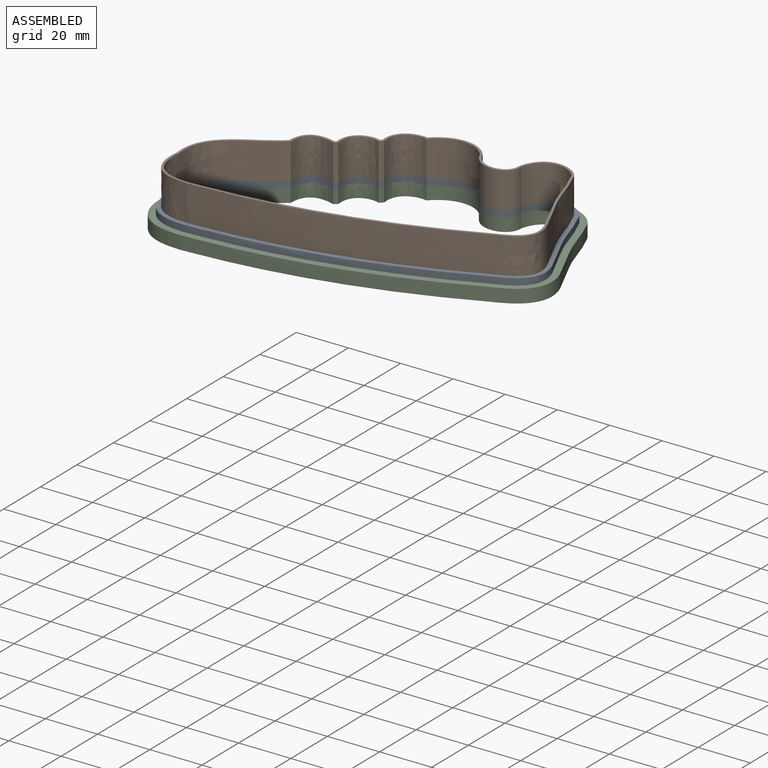
[diagram: assembled view]
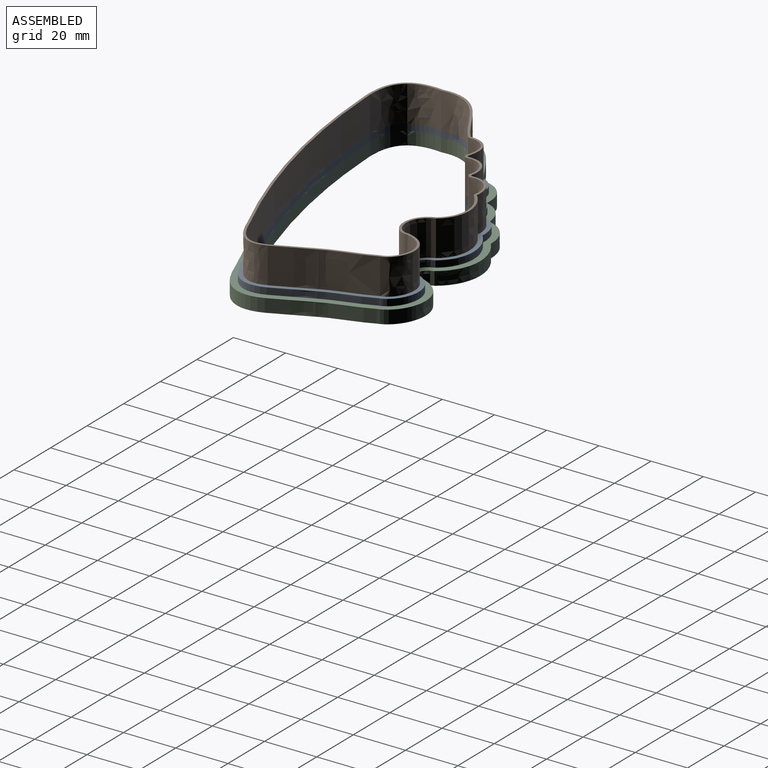
[diagram: assembled view, second angle]
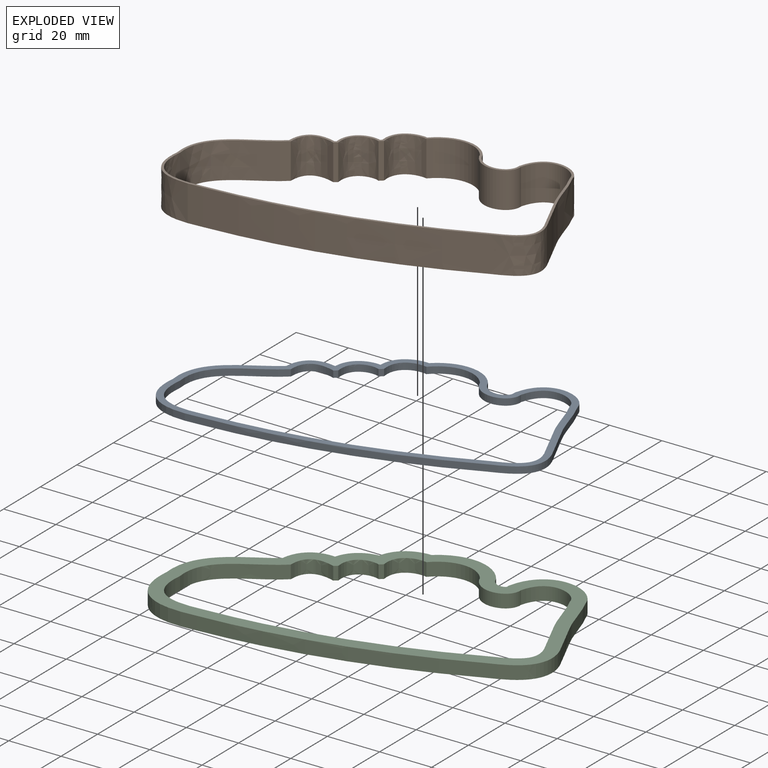
[diagram: exploded view]
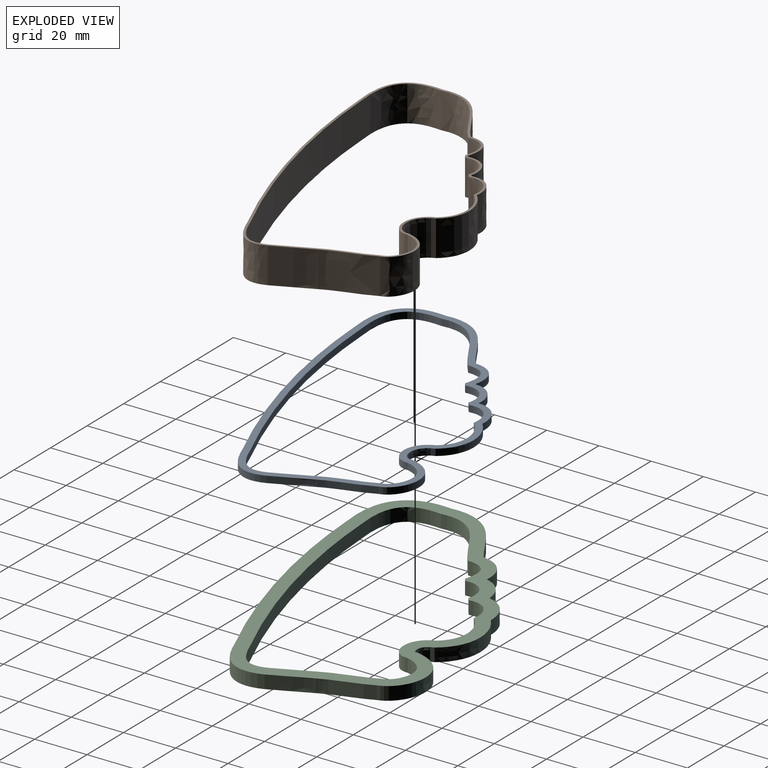
[diagram: exploded view, second angle]
ASSEMBLY  parts=3 mates=2
PART A: 28 faces, bbox 130.8x82.2x2.5 mm
  f0: plane 130.85x82.19mm, normal (0,0,1), area 895.3mm2, adj f2,f3,f4,f5,f6,f7,f8,f9
  f1: plane 130.85x82.19mm, normal (0,0,-1), area 895.3mm2, adj f2,f3,f4,f5,f6,f7,f8,f9
  f2: extruded ~14.79x6.74mm, area 41.3mm2, adj f0,f1,f3,f13
  f3: extruded ~18.67x6.83mm, area 50.6mm2, adj f0,f1,f2,f4
  f4: extruded ~22.32x10.15mm, area 78.3mm2, adj f0,f1,f3,f5
  f5: extruded ~11x5.02mm, area 39.7mm2, adj f0,f1,f4,f6
  f6: extruded ~23.61x6.22mm, area 68.4mm2, adj f0,f1,f5,f7
  f7: extruded ~11.78x9.79mm, area 44mm2, adj f0,f1,f6,f8
  f8: extruded ~11.07x9.07mm, area 41.1mm2, adj f0,f1,f7,f9
  f9: extruded ~12.6x9.11mm, area 45.7mm2, adj f0,f1,f8,f10
  f10: extruded ~28.12x23.8mm, area 100mm2, adj f0,f1,f9,f11
  f11: extruded ~23.68x19mm, area 92.5mm2, adj f0,f1,f10,f12
  f12: extruded ~93.81x23.11mm, area 246.7mm2, adj f0,f1,f11,f13
  f13: extruded ~17.64x13.34mm, area 63.2mm2, adj f0,f1,f2,f12
  f14: extruded ~14.7x6.71mm, area 41.1mm2, adj f0,f1,f15,f27
  f15: extruded ~18.87x6.92mm, area 51.1mm2, adj f0,f1,f14,f16
  f16: extruded ~17.33x7.85mm, area 60.7mm2, adj f0,f1,f15,f17
  f17: extruded ~15.77x6.32mm, area 56.2mm2, adj f0,f1,f16,f18
  f18: extruded ~20.51x4.91mm, area 59.7mm2, adj f0,f1,f17,f19
  f19: extruded ~10.1x9.14mm, area 40.9mm2, adj f0,f1,f18,f20
  f20: plane 2.54x1.33mm, normal (0.63,-0.78,0), area 4.4mm2, adj f0,f1,f19,f21
  f21: extruded ~9.87x8.59mm, area 39.8mm2, adj f0,f1,f20,f22
  f22: plane 2.54x1.25mm, normal (0.61,-0.79,0), area 4mm2, adj f0,f1,f21,f23
  f23: extruded ~11.47x7.77mm, area 42.3mm2, adj f0,f1,f22,f24
  f24: extruded ~26.91x23.76mm, area 97.2mm2, adj f0,f1,f23,f25
  f25: extruded ~20.92x16.47mm, area 81.9mm2, adj f0,f1,f24,f26
  f26: extruded ~93.08x22.94mm, area 244.8mm2, adj f0,f1,f25,f27
  f27: extruded ~14.36x11.74mm, area 53.2mm2, adj f0,f1,f14,f26
PART B: 30 faces, bbox 132.4x83.8x17.5 mm
  f0: plane 132.37x83.82mm, normal (0,0,1), area 309.4mm2, adj f2,f3,f4,f5,f6,f7,f8,f9
  f1: plane 132.37x83.82mm, normal (0,0,-1), area 309.4mm2, adj f2,f3,f4,f5,f6,f7,f8,f9
  f2: extruded ~14.73x13.72mm, area 222.2mm2, adj f0,f1,f3,f15
  f3: extruded ~18.79x13.72mm, area 274.8mm2, adj f0,f1,f2,f4
  f4: extruded ~19.08x13.72mm, area 361.3mm2, adj f0,f1,f3,f5
  f5: extruded ~14.11x13.72mm, area 272.8mm2, adj f0,f1,f4,f6
  f6: extruded ~21.59x13.72mm, area 338.2mm2, adj f0,f1,f5,f7
  f7: extruded ~13.72x10.7mm, area 230.7mm2, adj f0,f1,f6,f8
  f8: plane 13.72x0.55mm, normal (-0.63,0.78,0), area 9.6mm2, adj f0,f1,f7,f9
  f9: extruded ~13.72x10.6mm, area 225.9mm2, adj f0,f1,f8,f10
  f10: plane 13.72x0.49mm, normal (-0.61,0.79,0), area 8.4mm2, adj f0,f1,f9,f11
  f11: extruded ~13.72x12.18mm, area 239.5mm2, adj f0,f1,f10,f12
  f12: extruded ~27.32x23.77mm, area 530mm2, adj f0,f1,f11,f13
  f13: extruded ~21.89x17.35mm, area 462.2mm2, adj f0,f1,f12,f14
  f14: extruded ~93.34x23mm, area 1325.5mm2, adj f0,f1,f13,f15
  f15: extruded ~15.51x13.72mm, area 306.1mm2, adj f0,f1,f2,f14
  f16: extruded ~14.7x13.72mm, area 221.7mm2, adj f0,f1,f17,f29
  f17: extruded ~18.87x13.72mm, area 275.9mm2, adj f0,f1,f16,f18
  f18: extruded ~17.33x13.72mm, area 327.9mm2, adj f0,f1,f17,f19
  f19: extruded ~15.77x13.72mm, area 303.6mm2, adj f0,f1,f18,f20
  f20: extruded ~20.51x13.72mm, area 322.3mm2, adj f0,f1,f19,f21
  f21: extruded ~13.72x10.1mm, area 221mm2, adj f0,f1,f20,f22
  f22: plane 13.72x1.33mm, normal (0.63,-0.78,0), area 23.6mm2, adj f0,f1,f21,f23
  f23: extruded ~13.72x9.87mm, area 214.8mm2, adj f0,f1,f22,f24
  f24: plane 13.72x1.25mm, normal (0.61,-0.79,0), area 21.6mm2, adj f0,f1,f23,f25
  f25: extruded ~13.72x11.47mm, area 228.4mm2, adj f0,f1,f24,f26
  f26: extruded ~26.91x23.76mm, area 525mm2, adj f0,f1,f25,f27
  f27: extruded ~20.92x16.47mm, area 442.1mm2, adj f0,f1,f26,f28
  f28: extruded ~93.08x22.94mm, area 1321.9mm2, adj f0,f1,f27,f29
  f29: extruded ~14.36x13.72mm, area 287.1mm2, adj f0,f1,f16,f28
PART C: 28 faces, bbox 141x92.3x10.1 mm
  f0: plane 140.98x92.3mm, normal (0,0,1), area 1824.1mm2, adj f2,f3,f4,f5,f6,f7,f8,f9
  f1: plane 140.98x92.3mm, normal (0,0,-1), area 1824.1mm2, adj f2,f3,f4,f5,f6,f7,f8,f9
  f2: extruded ~14.89x6.78mm, area 83.1mm2, adj f0,f1,f3,f13
  f3: extruded ~18.52x6.76mm, area 100.2mm2, adj f0,f1,f2,f4
  f4: extruded ~27.28x12.44mm, area 192mm2, adj f0,f1,f3,f5
  f5: extruded ~6.22x5.08mm, area 46.4mm2, adj f0,f1,f4,f6
  f6: extruded ~26.75x7.52mm, area 154.1mm2, adj f0,f1,f5,f7
  f7: extruded ~13.15x9.72mm, area 90.4mm2, adj f0,f1,f6,f8
  f8: extruded ~10.94x8.67mm, area 76mm2, adj f0,f1,f7,f9
  f9: extruded ~12.9x10.33mm, area 94mm2, adj f0,f1,f8,f10
  f10: extruded ~29.45x23.91mm, area 206.1mm2, adj f0,f1,f9,f11
  f11: extruded ~26.43x21.53mm, area 206.3mm2, adj f0,f1,f10,f12
  f12: extruded ~94.55x23.29mm, area 497.3mm2, adj f0,f1,f11,f13
  f13: extruded ~20.92x14.93mm, area 146.6mm2, adj f0,f1,f2,f12
  f14: extruded ~14.7x6.71mm, area 82.1mm2, adj f0,f1,f15,f27
  f15: extruded ~18.87x6.92mm, area 102.2mm2, adj f0,f1,f14,f16
  f16: extruded ~17.33x7.85mm, area 121.4mm2, adj f0,f1,f15,f17
  f17: extruded ~15.77x6.32mm, area 112.5mm2, adj f0,f1,f16,f18
  f18: extruded ~20.51x5.08mm, area 119.4mm2, adj f0,f1,f17,f19
  f19: extruded ~10.1x9.14mm, area 81.8mm2, adj f0,f1,f18,f20
  f20: plane 5.08x1.33mm, normal (0.63,-0.78,0), area 8.7mm2, adj f0,f1,f19,f21
  f21: extruded ~9.87x8.59mm, area 79.6mm2, adj f0,f1,f20,f22
  f22: plane 5.08x1.25mm, normal (0.61,-0.79,0), area 8mm2, adj f0,f1,f21,f23
  f23: extruded ~11.47x7.77mm, area 84.6mm2, adj f0,f1,f22,f24
  f24: extruded ~26.91x23.76mm, area 194.5mm2, adj f0,f1,f23,f25
  f25: extruded ~20.92x16.47mm, area 163.7mm2, adj f0,f1,f24,f26
  f26: extruded ~93.08x22.94mm, area 489.6mm2, adj f0,f1,f25,f27
  f27: extruded ~14.36x11.74mm, area 106.3mm2, adj f0,f1,f14,f26
PLACE A at identity
PLACE B t=(-146.75,-21.06,2.54)mm
PLACE C t=(-277.92,-10.23,-5.08)mm
MATE fastened C.f0 <-> A.f1  axis (0,0,1) through (-160.56,-7.55,0)mm
MATE fastened B.f1 <-> A.f0  axis (0,0,1) through (-160.56,-7.55,2.54)mm
